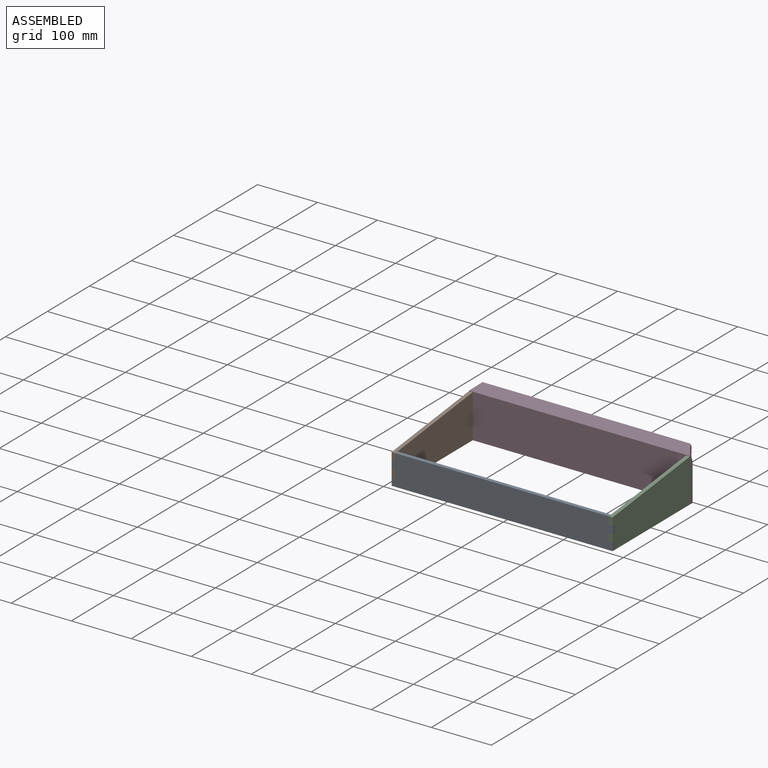
[diagram: assembled view]
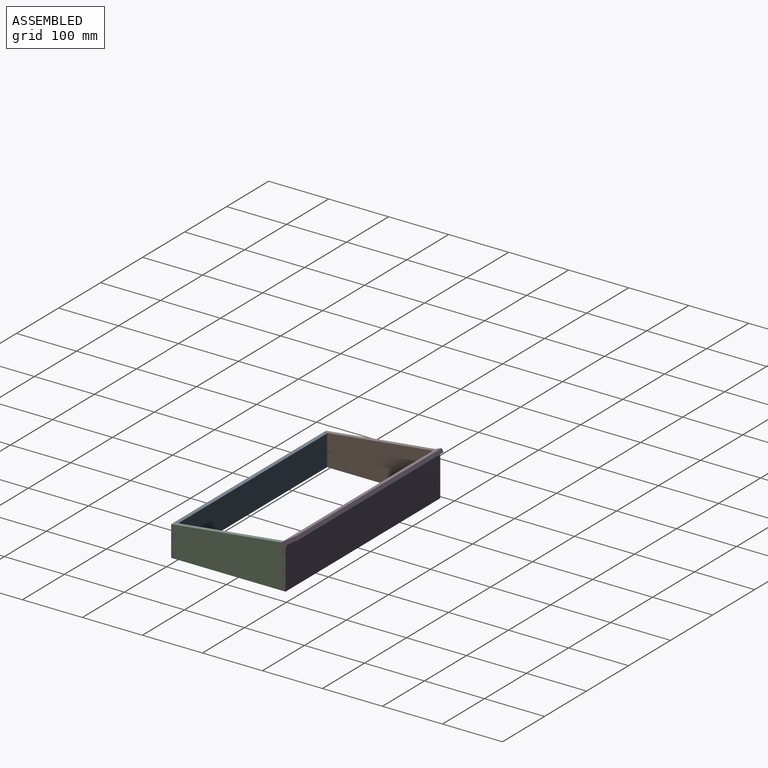
[diagram: assembled view, second angle]
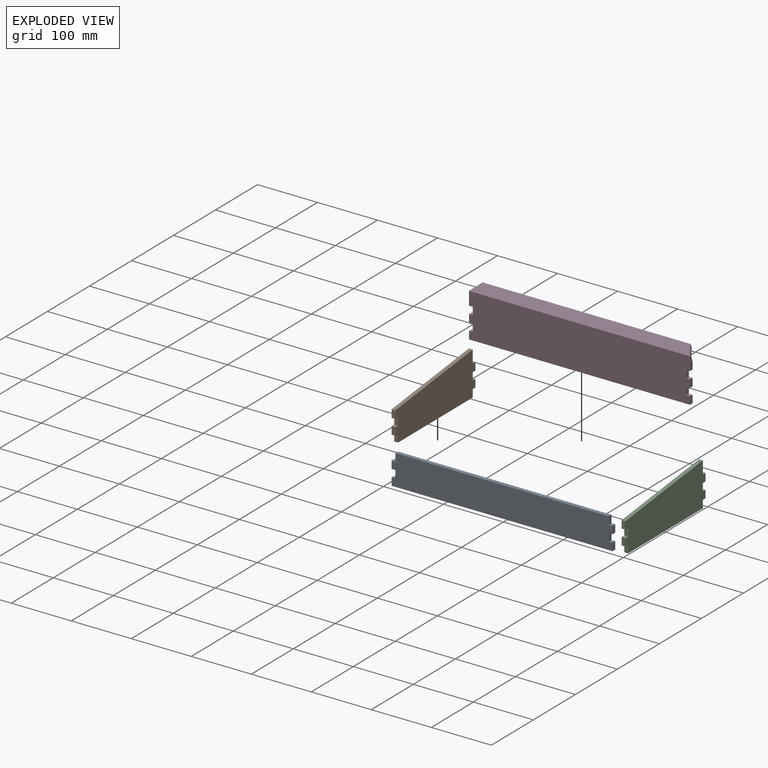
[diagram: exploded view]
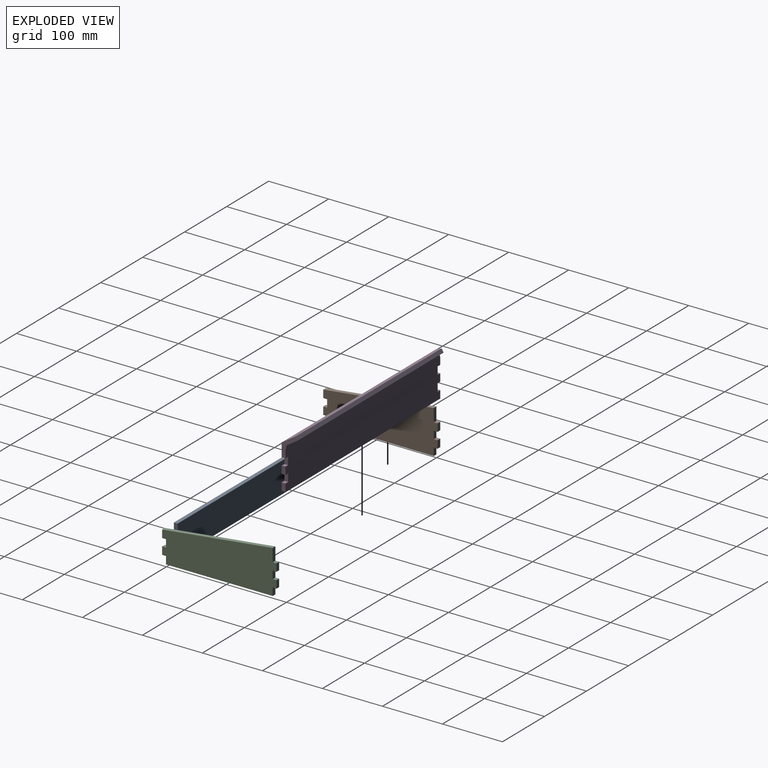
[diagram: exploded view, second angle]
ASSEMBLY  parts=4 mates=11
PART A: 18 faces, bbox 368.3x6.4x50.8 mm
  f0: plane 6.35x6.35mm, normal (0,0,-1), area 40.3mm2, adj f1,f15,f16,f17
  f1: plane 12.7x6.35mm, normal (-1,0,0), area 80.6mm2, adj f0,f2,f16,f17
  f2: plane 6.35x6.35mm, normal (0,0,1), area 40.3mm2, adj f1,f3,f16,f17
  f3: plane 12.7x6.35mm, normal (-1,0,0), area 80.6mm2, adj f2,f4,f16,f17
  f4: plane 368.3x6.35mm, normal (0,0,-1), area 2338.7mm2, adj f3,f5,f16,f17
  f5: plane 12.7x6.35mm, normal (1,0,0), area 80.6mm2, adj f4,f6,f16,f17
  f6: plane 6.35x6.35mm, normal (0,0,1), area 40.3mm2, adj f5,f7,f16,f17
  f7: plane 12.7x6.35mm, normal (1,0,0), area 80.6mm2, adj f6,f8,f16,f17
  f8: plane 6.35x6.35mm, normal (0,0,-1), area 40.3mm2, adj f7,f9,f16,f17
  f9: plane 12.7x6.35mm, normal (1,0,0), area 80.6mm2, adj f8,f10,f16,f17
  f10: plane 6.35x6.35mm, normal (0,0,1), area 40.3mm2, adj f9,f11,f16,f17
  f11: plane 12.7x6.35mm, normal (1,0,0), area 80.6mm2, adj f10,f12,f16,f17
  f12: plane 355.6x6.35mm, normal (0,0,1), area 2258.1mm2, adj f11,f13,f16,f17
  f13: plane 12.7x6.35mm, normal (-1,0,0), area 80.6mm2, adj f12,f14,f16,f17
  f14: plane 6.35x6.35mm, normal (0,0,1), area 40.3mm2, adj f13,f15,f16,f17
  f15: plane 12.7x6.35mm, normal (-1,0,0), area 80.6mm2, adj f0,f14,f16,f17
  f16: plane 368.3x50.8mm, normal (0,-1,0), area 18387.1mm2, adj f0,f1,f2,f3,f4,f5,f6,f7
  f17: plane 368.3x50.8mm, normal (0,1,0), area 18387.1mm2, adj f0,f1,f2,f3,f4,f5,f6,f7
PART B: 20 faces, bbox 190.5x6.4x72.3 mm
  f0: plane 6.35x6.35mm, normal (0,0,1), area 40.3mm2, adj f1,f17,f18,f19
  f1: plane 12.7x6.35mm, normal (-1,0,0), area 80.6mm2, adj f0,f2,f18,f19
  f2: plane 6.35x6.35mm, normal (0,0,-1), area 40.3mm2, adj f1,f3,f18,f19
  f3: plane 12.7x6.35mm, normal (-1,0,0), area 80.6mm2, adj f2,f4,f18,f19
  f4: plane 177.8x6.35mm, normal (0,0,-1), area 1129mm2, adj f3,f5,f18,f19
  f5: plane 12.7x6.35mm, normal (1,0,0), area 80.6mm2, adj f4,f6,f18,f19
  f6: plane 6.35x6.35mm, normal (0,0,-1), area 40.3mm2, adj f5,f7,f18,f19
  f7: plane 12.7x6.35mm, normal (1,0,0), area 80.6mm2, adj f6,f8,f18,f19
  f8: plane 6.35x6.35mm, normal (0,0,1), area 40.3mm2, adj f7,f9,f18,f19
  f9: plane 12.7x6.35mm, normal (1,0,0), area 80.6mm2, adj f8,f10,f18,f19
  f10: plane 6.35x6.35mm, normal (0,0,-1), area 40.3mm2, adj f9,f11,f18,f19
  f11: plane 12.7x6.35mm, normal (1,0,0), area 80.6mm2, adj f10,f12,f18,f19
  f12: plane 6.35x6.35mm, normal (0,0,1), area 40.3mm2, adj f11,f13,f18,f19
  f13: plane 21.48x6.35mm, normal (1,0,0), area 136.4mm2, adj f12,f14,f18,f19
  f14: plane 184.15x21.48mm, normal (-0.12,0,0.99), area 1177.3mm2, adj f13,f15,f18,f19
  f15: plane 12.7x6.35mm, normal (-1,0,0), area 80.6mm2, adj f14,f16,f18,f19
  f16: plane 6.35x6.35mm, normal (0,0,-1), area 40.3mm2, adj f15,f17,f18,f19
  f17: plane 12.7x6.35mm, normal (-1,0,0), area 80.6mm2, adj f0,f16,f18,f19
  f18: plane 190.5x72.28mm, normal (0,-1,0), area 11333mm2, adj f0,f1,f2,f3,f4,f5,f6,f7
  f19: plane 190.5x72.28mm, normal (0,1,0), area 11333mm2, adj f0,f1,f2,f3,f4,f5,f6,f7
PART C: same geometry as B
PART D: 27 faces, bbox 368.3x19.7x82.6 mm
  f0: plane 346.3x5.5mm, normal (0,0.87,0.5), area 2199mm2, adj f1,f3,f24,f25
  f1: plane 368.3x16.5mm, normal (0,-0.5,0.87), area 6806.6mm2, adj f0,f10,f24,f25
  f2: plane 368.3x67.53mm, normal (0,1,0), area 24538.4mm2, adj f4,f5,f6,f7,f8,f9,f11,f12
  f3: plane 361.95x11.74mm, normal (0,0.5,-0.87), area 4798.7mm2, adj f0,f24,f25,f26
  f4: plane 22.23x6.35mm, normal (1,0,0), area 106.2mm2, adj f2,f10,f23,f24
  f5: plane 22.23x6.35mm, normal (-1,0,0), area 106.2mm2, adj f2,f10,f13,f25
  f6: plane 12.7x6.35mm, normal (1,0,0), area 80.6mm2, adj f2,f10,f20,f22
  f7: plane 12.7x6.35mm, normal (1,0,0), area 80.6mm2, adj f2,f10,f11,f19
  f8: plane 12.7x6.35mm, normal (-1,0,0), area 80.6mm2, adj f2,f10,f11,f17
  f9: plane 12.7x6.35mm, normal (-1,0,0), area 80.6mm2, adj f2,f10,f14,f16
  f10: plane 368.3x73.03mm, normal (0,-1,0), area 26572.5mm2, adj f1,f4,f5,f6,f7,f8,f9,f11
  f11: plane 368.3x6.35mm, normal (0,0,-1), area 2338.7mm2, adj f2,f7,f8,f10
  f12: plane 12.7x6.35mm, normal (-1,0,0), area 80.6mm2, adj f2,f10,f13,f14
  f13: plane 6.35x6.35mm, normal (0,0,-1), area 40.3mm2, adj f2,f5,f10,f12
  f14: plane 6.35x6.35mm, normal (0,0,1), area 40.3mm2, adj f2,f9,f10,f12
  f15: plane 12.7x6.35mm, normal (-1,0,0), area 80.6mm2, adj f2,f10,f16,f17
  f16: plane 6.35x6.35mm, normal (0,0,-1), area 40.3mm2, adj f2,f9,f10,f15
  f17: plane 6.35x6.35mm, normal (0,0,1), area 40.3mm2, adj f2,f8,f10,f15
  f18: plane 12.7x6.35mm, normal (1,0,0), area 80.6mm2, adj f2,f10,f19,f20
  f19: plane 6.35x6.35mm, normal (0,0,1), area 40.3mm2, adj f2,f7,f10,f18
  f20: plane 6.35x6.35mm, normal (0,0,-1), area 40.3mm2, adj f2,f6,f10,f18
  f21: plane 12.7x6.35mm, normal (1,0,0), area 80.6mm2, adj f2,f10,f22,f23
  f22: plane 6.35x6.35mm, normal (0,0,1), area 40.3mm2, adj f2,f6,f10,f21
  f23: plane 6.35x6.35mm, normal (0,0,-1), area 40.3mm2, adj f2,f4,f10,f21
  f24: plane 20.52x19.67mm, normal (0.87,0.43,0.25), area 153.7mm2, adj f0,f1,f2,f3,f4,f26
  f25: plane 20.52x19.67mm, normal (-0.87,0.43,0.25), area 153.7mm2, adj f0,f1,f2,f3,f5,f26
  f26: cylinder r=3.17mm len=365.13mm, axis (1,0,0), area 1209.3mm2, adj f2,f3,f24,f25
PLACE A t=(0,3.18,0)mm fixed
PLACE B rot(axis=(0,0,1),90deg) t=(-184.15,92.08,-13.63)mm
PLACE C rot(axis=(0,0,1),90deg) t=(177.8,92.07,-13.63)mm
PLACE D t=(-184.15,180.98,1.59)mm
MATE planar A.f4 <-> B.f4  axis (0,0,-1) through (0,0,-33.34)mm
MATE planar D.f11 <-> B.f4  axis (0,0,-1) through (0,184.15,-33.34)mm
MATE planar B.f15 <-> A.f16  axis (0,-1,0) through (-180.98,-3.17,11.11)mm
MATE planar C.f19 <-> A.f11  axis (-1,0,0) through (177.8,96.88,-2.07)mm
MATE planar B.f18 <-> D.f12  axis (1,0,0) through (-177.8,180.98,-1.59)mm
MATE planar D.f2 <-> B.f11  axis (0,1,0) through (0,187.33,0.44)mm
MATE planar C.f4 <-> A.f4  axis (0,0,-1) through (180.98,92.07,-33.34)mm
MATE planar C.f19 <-> A.f11  axis (-1,0,0) through (177.8,180.97,38.95)mm
MATE planar C.f18 <-> A.f5  axis (1,0,0) through (184.15,96.88,-2.07)mm
MATE planar B.f18 <-> A.f13  axis (1,0,0) through (-177.8,96.88,-2.07)mm
MATE planar C.f3 <-> A.f17  axis (0,-1,0) through (180.98,3.17,-26.99)mm
